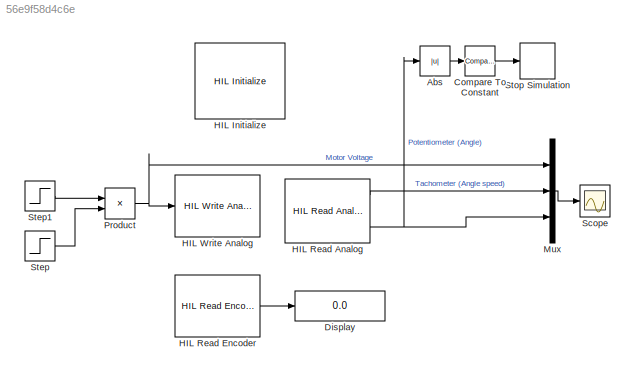
MODEL slx_56e9f58d4c6e
KIND model
CONFIG AbsTol = auto
CONFIG EnableMultiTasking = on
CONFIG FixedStep = 0.001
CONFIG MaxStep = auto
CONFIG MinStep = auto
CONFIG RelTol = 1e-3
CONFIG SampleTimeConstraint = Unconstrained
CONFIG SolverName = FixedStepAuto
CONFIG StartTime = 0.0
CONFIG StopTime = 30
BLOCK [Abs] Abs
  SaturateOnIntegerOverflow = off
BLOCK [Reference] Compare To Constant  REF=simulink/Logic and Bit
Operations/Compare
To Constant
  Ports = [1, 1]
  SourceBlock = simulink/Logic and Bit\nOperations/Compare\nTo Constant
  SourceProductBaseCode = SL
  SourceType = Compare To Constant
BLOCK [Display] Display
  Decimation = 1
  Ports = [1]
BLOCK [Reference] HIL Initialize  REF=quarc_library/Data Acquisition/Generic/Configuration/HIL Initialize
  AttributesFormatString = %<object_name> (%<board_type>-%<board_number>)
  Ports = []
  SourceBlock = quarc_library/Data Acquisition/Generic/Configuration/HIL Initialize
  SourceProductName = QUARC Targets
  SourceType = HIL Initialize
  UserDataPersistent = on
BLOCK [Reference] HIL Read Analog  REF=quarc_library/Data Acquisition/Generic/Immediate I//O/HIL Read Analog
  AttributesFormatString = (%<object_name>)
  Ports = [0, 3]
  SourceBlock = quarc_library/Data Acquisition/Generic/Immediate I//O/HIL Read Analog
  SourceProductName = QUARC Targets
  SourceType = HIL Read Analog
  UserDataPersistent = on
BLOCK [Reference] HIL Read Encoder  REF=quarc_library/Data Acquisition/Generic/Immediate I//O/HIL Read Encoder
  AttributesFormatString = (%<object_name>)
  Ports = [0, 1]
  SourceBlock = quarc_library/Data Acquisition/Generic/Immediate I//O/HIL Read Encoder
  SourceProductName = QUARC Targets
  SourceType = HIL Read Encoder
  UserDataPersistent = on
BLOCK [Reference] HIL Write Analog  REF=quarc_library/Data Acquisition/Generic/Immediate I//O/HIL Write Analog
  AttributesFormatString = (%<object_name>)
  Ports = [1]
  SourceBlock = quarc_library/Data Acquisition/Generic/Immediate I//O/HIL Write Analog
  SourceProductName = QUARC Targets
  SourceType = HIL Write Analog
  UserDataPersistent = on
BLOCK [Mux] Mux
  DisplayOption = bar
  Inputs = 3
  Ports = [3, 1]
BLOCK [Product] Product
  Ports = [2, 1]
BLOCK [Scope] Scope
  Floating = off
  NumInputPorts = 1
  Ports = [1]
  ScopeSpecificationString = Simulink.scopes.TimeScopeBlockCfg('CurrentConfiguration', extmgr.ConfigurationSet(extmgr.Configuration('Core','General UI',true),extmgr.Configuration('Core','Source UI',true),extmgr.Configuration('Sources','WiredSimulink',true,'DataLogging',true,'DataLoggingSaveFormat','StructureWithTime','SampleTime','0.01'),extmgr.Configuration('Visuals','Time Domain',true,'SerializedDisplays',{struct('MinYLimRe...<+1716ch>
BLOCK [Step] Step
  SampleTime = 0
BLOCK [Step] Step1
  After = 0
  Before = 1
  SampleTime = 0
  Time = 28
BLOCK [Stop] Stop Simulation
LINE Abs:1 -> Compare To Constant:1
LINE Compare To Constant:1 -> Stop Simulation:1
LINE HIL Read Analog:1 -> Mux:2
NET HIL Read Analog:3 -> Abs:1, Mux:3
LINE HIL Read Encoder:1 -> Display:1
LINE Mux:1 -> Scope:1
NET Product:1 -> HIL Write Analog:1, Mux:1
LINE Step1:1 -> Product:1
LINE Step:1 -> Product:2
note: NET lines group one-source signal fan-out (src -> all destinations, sorted); 1:1 wires keep LINE
